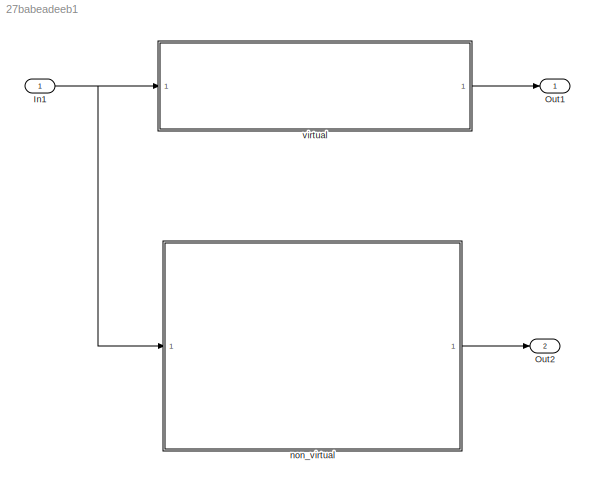
MODEL slx_27babeadeeb1
KIND model
CONFIG AbsTol = auto
CONFIG EnableMultiTasking = off
CONFIG FixedStep = 0.5
CONFIG MaxStep = 1
CONFIG MinStep = auto
CONFIG RelTol = 1
CONFIG SampleTimeConstraint = Unconstrained
CONFIG SolverName = FixedStepDiscrete
CONFIG StartTime = 0.0
CONFIG StopTime = 10.0
BLOCK [Inport] In1
BLOCK [Outport] Out1
BLOCK [Outport] Out2
  Port = 2
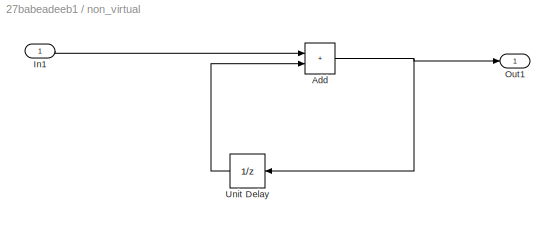
BLOCK [SubSystem] non_virtual
  RTWFcnName = Non_V
  RTWSystemCode = Nonreusable function
  TreatAsAtomicUnit = on
BLOCK [Sum] non_virtual/Add
  IconShape = rectangular
BLOCK [Inport] non_virtual/In1
BLOCK [Outport] non_virtual/Out1
BLOCK [UnitDelay] non_virtual/Unit Delay
  HasFrameUpgradeWarning = on
  NameLocation = top
  SampleTime = -1
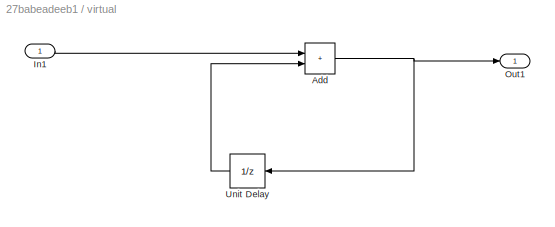
BLOCK [SubSystem] virtual
BLOCK [Sum] virtual/Add
  IconShape = rectangular
BLOCK [Inport] virtual/In1
BLOCK [Outport] virtual/Out1
BLOCK [UnitDelay] virtual/Unit Delay
  HasFrameUpgradeWarning = on
  NameLocation = top
  SampleTime = -1
NET In1:1 -> non_virtual:1, virtual:1
NET non_virtual/Add:1 -> non_virtual/Out1:1, non_virtual/Unit Delay:1
LINE non_virtual/In1:1 -> non_virtual/Add:1
LINE non_virtual/Unit Delay:1 -> non_virtual/Add:2
LINE non_virtual:1 -> Out2:1
NET virtual/Add:1 -> virtual/Out1:1, virtual/Unit Delay:1
LINE virtual/In1:1 -> virtual/Add:1
LINE virtual/Unit Delay:1 -> virtual/Add:2
LINE virtual:1 -> Out1:1
note: NET lines group one-source signal fan-out (src -> all destinations, sorted); 1:1 wires keep LINE
